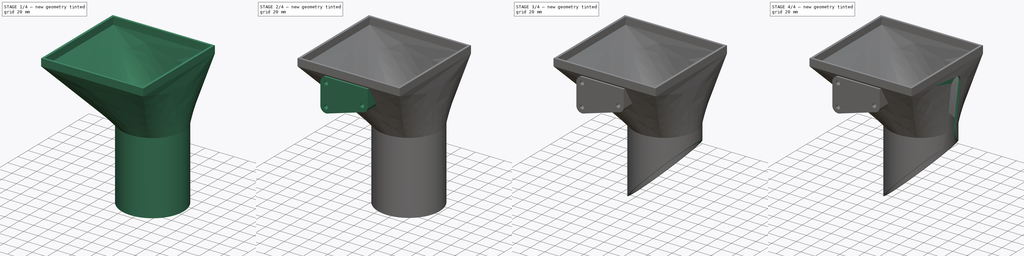
[diagram: build sequence overview — one tinted view per stage of 4, left to right]
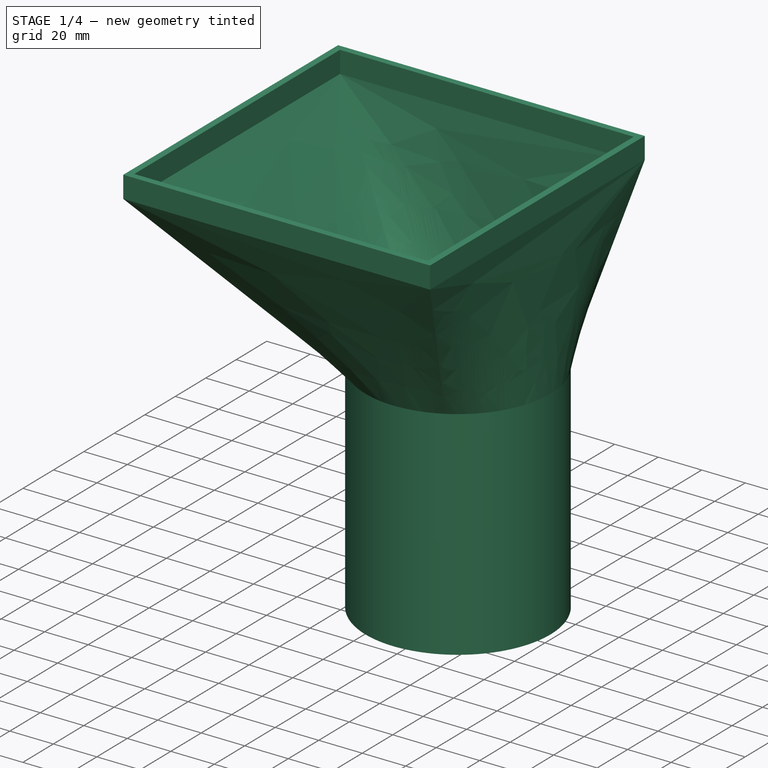
[diagram: stage 1 of 4 — iso view after this stage's code; geometry added in this stage tinted green]
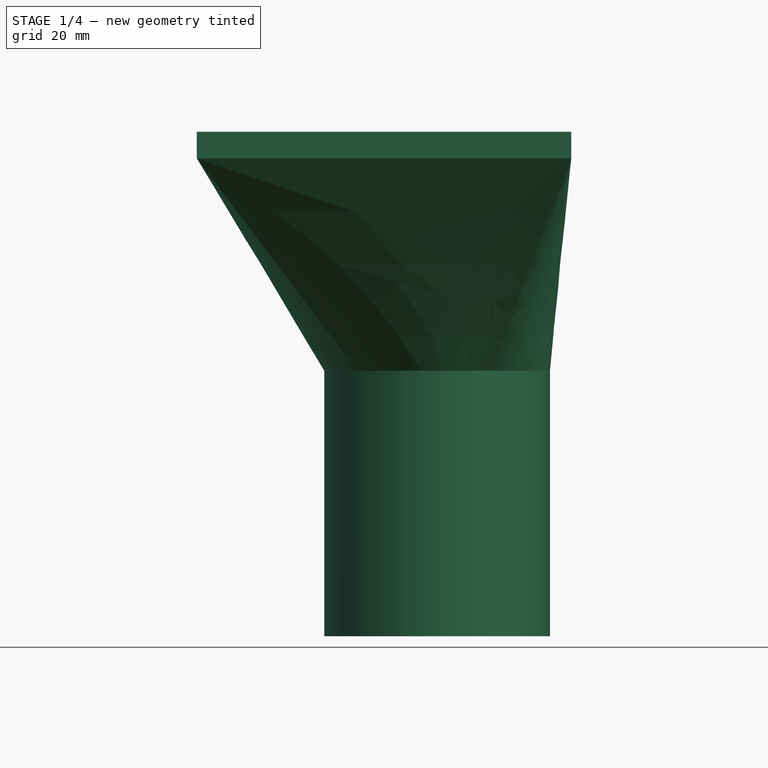
[diagram: stage 1 of 4 — front view after this stage's code; geometry added in this stage tinted green]
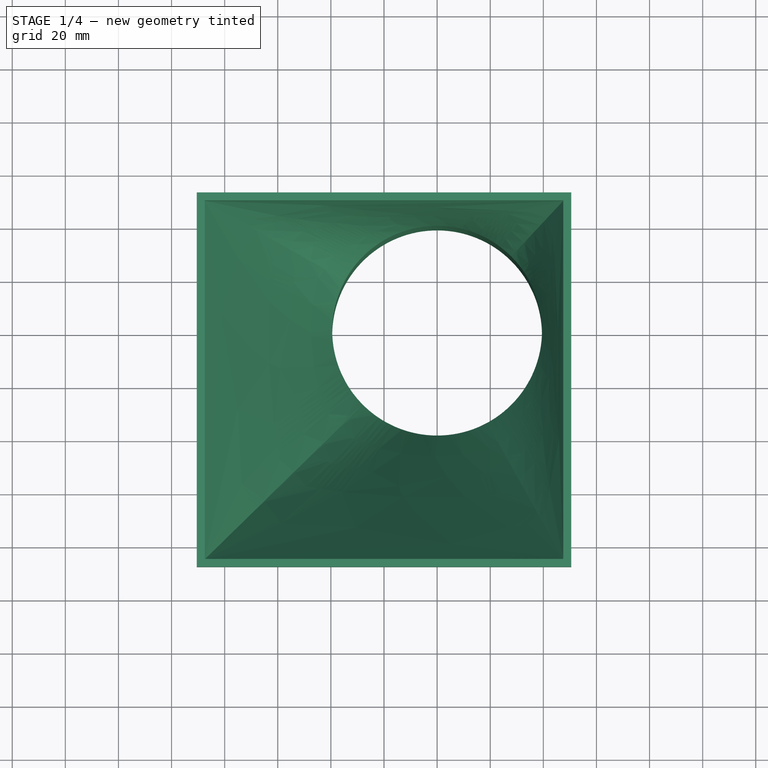
[diagram: stage 1 of 4 — top view after this stage's code; geometry added in this stage tinted green]
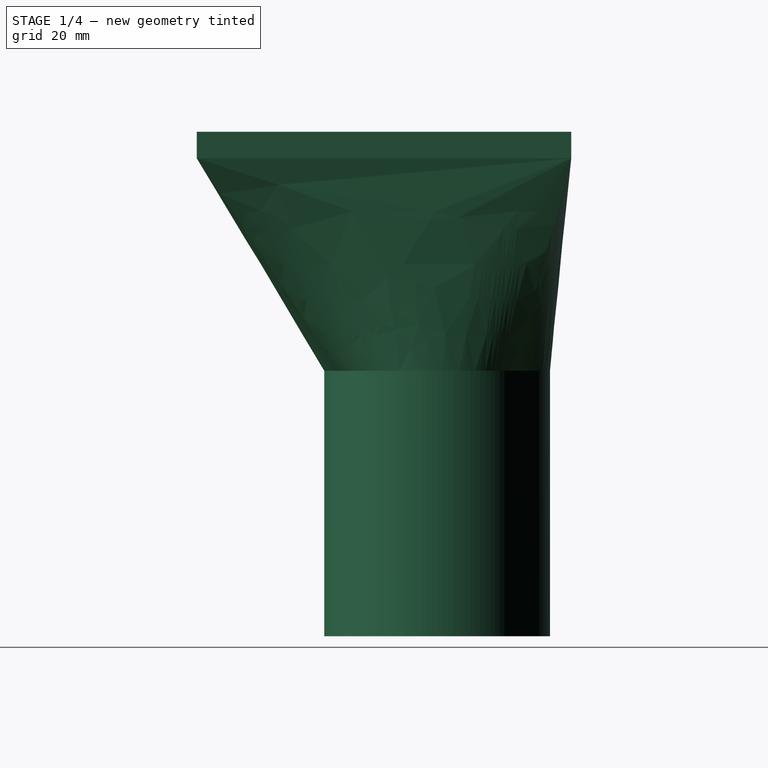
[diagram: stage 1 of 4 — right view after this stage's code; geometry added in this stage tinted green]
FCSTD DOCUMENT  (FreeCAD 0.19R24291 (Git))
Label: min_wool_funnel
License: All rights reserved
LicenseURL: http://en.wikipedia.org/wiki/All_rights_reserved
objects: Sketcher::SketchObject×12, PartDesign::Plane×7, PartDesign::Pocket×3, PartDesign::Line×3, PartDesign::Groove×3, PartDesign::Pad×2, Spreadsheet::Sheet×1, PartDesign::CoordinateSystem×1, PartDesign::AdditiveLoft×1, PartDesign::Mirrored×1, PartDesign::Body×1
note: 43 computed .brp shape members not serialized (recipe doc carries the construction recipe); baked Part::Feature solids carry a one-line shape summary decoded from their .brp

FEATURE [Spreadsheet::Sheet] Spreadsheet
  cells = B2(wall_thickness)=3; C2(tube_offset_x)=20; B3(funnel_x)=135; C3(tube_offset_y)==tube_offset_x; B4(funnel_y)==funnel_x; C4(tube_d)=85; B5(funnel_vert_length)=10; C5(tube_l)=100; B6(funnel_length)=90; C6(tube_cut_angle)==45°
FEATURE [Sketcher::SketchObject] Sketch
  FullyConstrained = true
  MapMode = 5
  Support = -> [XY_Plane]
  expr: Constraints[33] = Spreadsheet.funnel_y + Spreadsheet.wall_thickness * 2
  expr: Constraints[32] = Spreadsheet.funnel_x + Spreadsheet.wall_thickness * 2
  expr: Constraints[31] = Spreadsheet.funnel_y
  expr: Constraints[30] = Spreadsheet.funnel_x
  sketch-geometry (14):
    g0: LineSegment StartX=67.5 StartY=67.5 StartZ=0 EndX=-67.5 EndY=67.5 EndZ=0
    g1: LineSegment StartX=-67.5 StartY=67.5 StartZ=0 EndX=-67.5 EndY=-67.5 EndZ=0
    g2: LineSegment StartX=-67.5 StartY=-67.5 StartZ=0 EndX=67.5 EndY=-67.5 EndZ=0
    g3: LineSegment StartX=67.5 StartY=-67.5 StartZ=0 EndX=67.5 EndY=67.5 EndZ=0
    g4: LineSegment StartX=70.5 StartY=70.5 StartZ=0 EndX=-70.5 EndY=70.5 EndZ=0
    g5: LineSegment StartX=-70.5 StartY=70.5 StartZ=0 EndX=-70.5 EndY=-70.5 EndZ=0
    g6: LineSegment StartX=-70.5 StartY=-70.5 StartZ=0 EndX=70.5 EndY=-70.5 EndZ=0
    g7: LineSegment StartX=70.5 StartY=-70.5 StartZ=0 EndX=70.5 EndY=70.5 EndZ=0
    g8: LineSegment StartX=-67.5 StartY=67.5 StartZ=0 EndX=67.5 EndY=-67.5 EndZ=0
    g9: LineSegment StartX=67.5 StartY=67.5 StartZ=0 EndX=-67.5 EndY=-67.5 EndZ=0
    g10: LineSegment StartX=70.5 StartY=70.5 StartZ=0 EndX=-70.5 EndY=-70.5 EndZ=0
    g11: LineSegment StartX=-70.5 StartY=70.5 StartZ=0 EndX=70.5 EndY=-70.5 EndZ=0
    g12: GeomPoint X=0 Y=0 Z=0
    g13: GeomPoint X=0 Y=0 Z=0
  constraints (34):
    c: Coincident(g0,g1)
    c: Coincident(g1,g2)
    c: Coincident(g2,g3)
    c: Coincident(g3,g0)
    c: Horizontal(g0)
    c: Horizontal(g2)
    c: Vertical(g1)
    c: Vertical(g3)
    c: Coincident(g4,g5)
    c: Coincident(g5,g6)
    c: Coincident(g6,g7)
    c: Coincident(g7,g4)
    c: Horizontal(g4)
    c: Horizontal(g6)
    c: Vertical(g5)
    c: Vertical(g7)
    c: Coincident(g8,g0)
    c: Coincident(g8,g2)
    c: Coincident(g9,g0)
    c: Coincident(g9,g1)
    c: Coincident(g10,g4)
    c: Coincident(g10,g5)
    c: Coincident(g11,g4)
    c: Coincident(g11,g6)
    c: PointOnObject(g12,g8)
    c: PointOnObject(g12,g9)
    c: PointOnObject(g13,g10)
    c: PointOnObject(g13,g11)
    c: Coincident(g13,g-1)
    c: Coincident(g12,g-1)
    c: Distance(g0) = 135
    c: Distance(g3) = 135
    c: Distance(g4) = 141
    c: Distance(g7) = 141
FEATURE [Sketcher::SketchObject] Sketch001
  AttachmentOffset = pos=(0,0,-10) rot=(0,0,1;0rad)
  FullyConstrained = true
  MapMode = 5
  Placement = pos=(0,0,-10) rot=(0,0,1;0rad)
  Support = -> [XY_Plane]
  expr: Constraints[33] = Spreadsheet.funnel_y + Spreadsheet.wall_thickness * 2
  expr: Constraints[32] = Spreadsheet.funnel_x + Spreadsheet.wall_thickness * 2
  expr: Constraints[31] = Spreadsheet.funnel_y
  expr: Constraints[30] = Spreadsheet.funnel_x
  expr: .AttachmentOffset.Base.z = -Spreadsheet.funnel_vert_length
  sketch-geometry (14):
    g0: LineSegment StartX=67.5 StartY=67.5 StartZ=0 EndX=-67.5 EndY=67.5 EndZ=0
    g1: LineSegment StartX=-67.5 StartY=67.5 StartZ=0 EndX=-67.5 EndY=-67.5 EndZ=0
    g2: LineSegment StartX=-67.5 StartY=-67.5 StartZ=0 EndX=67.5 EndY=-67.5 EndZ=0
    g3: LineSegment StartX=67.5 StartY=-67.5 StartZ=0 EndX=67.5 EndY=67.5 EndZ=0
    g4: LineSegment StartX=70.5 StartY=70.5 StartZ=0 EndX=-70.5 EndY=70.5 EndZ=0
    g5: LineSegment StartX=-70.5 StartY=70.5 StartZ=0 EndX=-70.5 EndY=-70.5 EndZ=0
    g6: LineSegment StartX=-70.5 StartY=-70.5 StartZ=0 EndX=70.5 EndY=-70.5 EndZ=0
    g7: LineSegment StartX=70.5 StartY=-70.5 StartZ=0 EndX=70.5 EndY=70.5 EndZ=0
    g8: LineSegment StartX=-67.5 StartY=67.5 StartZ=0 EndX=67.5 EndY=-67.5 EndZ=0
    g9: LineSegment StartX=67.5 StartY=67.5 StartZ=0 EndX=-67.5 EndY=-67.5 EndZ=0
    g10: LineSegment StartX=70.5 StartY=70.5 StartZ=0 EndX=-70.5 EndY=-70.5 EndZ=0
    g11: LineSegment StartX=-70.5 StartY=70.5 StartZ=0 EndX=70.5 EndY=-70.5 EndZ=0
    g12: GeomPoint X=0 Y=0 Z=0
    g13: GeomPoint X=0 Y=0 Z=0
  constraints (34):
    c: Coincident(g0,g1)
    c: Coincident(g1,g2)
    c: Coincident(g2,g3)
    c: Coincident(g3,g0)
    c: Horizontal(g0)
    c: Horizontal(g2)
    c: Vertical(g1)
    c: Vertical(g3)
    c: Coincident(g4,g5)
    c: Coincident(g5,g6)
    c: Coincident(g6,g7)
    c: Coincident(g7,g4)
    c: Horizontal(g4)
    c: Horizontal(g6)
    c: Vertical(g5)
    c: Vertical(g7)
    c: Coincident(g8,g0)
    c: Coincident(g8,g2)
    c: Coincident(g9,g0)
    c: Coincident(g9,g1)
    c: Coincident(g10,g4)
    c: Coincident(g10,g5)
    c: Coincident(g11,g4)
    c: Coincident(g11,g6)
    c: PointOnObject(g12,g8)
    c: PointOnObject(g12,g9)
    c: PointOnObject(g13,g10)
    c: PointOnObject(g13,g11)
    c: Coincident(g13,g-1)
    c: Coincident(g12,g-1)
    c: Distance(g0) = 135
    c: Distance(g3) = 135
    c: Distance(g4) = 141
    c: Distance(g7) = 141
FEATURE [PartDesign::CoordinateSystem] Local_CS
  AttacherType = Attacher::AttachEngine3D
  AttachmentOffset = pos=(20,20,-90) rot=(0,0,1;0rad)
  MapMode = 2
  Placement = pos=(20,20,-90) rot=(0,0,1;0rad)
  Support = -> [X_Axis]
  expr: .AttachmentOffset.Base.x = Spreadsheet.tube_offset_x
  expr: .AttachmentOffset.Base.y = Spreadsheet.tube_offset_y
  expr: .AttachmentOffset.Base.z = -Spreadsheet.funnel_length
FEATURE [PartDesign::Plane] DatumPlane
  Length = 169.3
  MapMode = 5
  Placement = pos=(20,20,-90) rot=(0,0,1;0rad)
  ResizeMode = 0
  Support = -> [Local_CS]
  Width = 170.3
FEATURE [Sketcher::SketchObject] Sketch002
  FullyConstrained = true
  MapMode = 5
  Placement = pos=(20,20,-90) rot=(0,0,1;0rad)
  Support = -> [DatumPlane]
  expr: Constraints[26] = -(Spreadsheet.funnel_x / 2 + Spreadsheet.tube_offset_x)
  expr: Constraints[29] = Spreadsheet.funnel_y / 2 - Spreadsheet.tube_offset_y
  expr: Constraints[24] = Spreadsheet.funnel_x / 2 - Spreadsheet.tube_offset_x
  expr: Constraints[28] = -(Spreadsheet.funnel_x / 2 + Spreadsheet.tube_offset_x)
  expr: Constraints[25] = -(Spreadsheet.funnel_y / 2 + Spreadsheet.tube_offset_y)
  expr: Constraints[20] = Spreadsheet.funnel_y / 2 - Spreadsheet.tube_offset_y
  expr: Constraints[19] = Spreadsheet.funnel_x / 2 - Spreadsheet.tube_offset_x
  expr: Constraints[27] = -(Spreadsheet.funnel_y / 2 + Spreadsheet.tube_offset_y)
  expr: Constraints[17] = Spreadsheet.tube_d
  expr: Constraints[16] = Spreadsheet.tube_d - Spreadsheet.wall_thickness * 2
  sketch-geometry (12):
    g0: ArcOfCircle CenterX=0 CenterY=0 CenterZ=0 NormalX=0 NormalY=0 NormalZ=1 AngleXU=0 Radius=39.5 StartAngle=0.785398 EndAngle=2.64425
    g1: ArcOfCircle CenterX=0 CenterY=0 CenterZ=0 NormalX=0 NormalY=0 NormalZ=1 AngleXU=0 Radius=39.5 StartAngle=2.64425 EndAngle=3.92699
    g2: ArcOfCircle CenterX=0 CenterY=0 CenterZ=0 NormalX=0 NormalY=0 NormalZ=1 AngleXU=0 Radius=39.5 StartAngle=3.92699 EndAngle=5.20973
    g3: ArcOfCircle CenterX=0 CenterY=0 CenterZ=0 NormalX=0 NormalY=0 NormalZ=1 AngleXU=0 Radius=39.5 StartAngle=5.20973 EndAngle=7.06858
    g4: ArcOfCircle CenterX=0 CenterY=0 CenterZ=0 NormalX=0 NormalY=0 NormalZ=1 AngleXU=0 Radius=42.5 StartAngle=0.785398 EndAngle=2.64425
    g5: ArcOfCircle CenterX=0 CenterY=0 CenterZ=0 NormalX=0 NormalY=0 NormalZ=1 AngleXU=0 Radius=42.5 StartAngle=2.64425 EndAngle=3.92699
    g6: ArcOfCircle CenterX=0 CenterY=0 CenterZ=0 NormalX=0 NormalY=0 NormalZ=1 AngleXU=0 Radius=42.5 StartAngle=3.92699 EndAngle=5.20973
    g7: ArcOfCircle CenterX=0 CenterY=0 CenterZ=0 NormalX=0 NormalY=0 NormalZ=1 AngleXU=0 Radius=42.5 StartAngle=5.20973 EndAngle=7.06858
    g8: LineSegment StartX=0 StartY=0 StartZ=0 EndX=47.5 EndY=47.5 EndZ=0
    g9: LineSegment StartX=0 StartY=0 StartZ=0 EndX=47.5 EndY=-87.5 EndZ=0
    g10: LineSegment StartX=0 StartY=0 StartZ=0 EndX=-87.5 EndY=-87.5 EndZ=0
    g11: LineSegment StartX=0 StartY=0 StartZ=0 EndX=-87.5 EndY=47.5 EndZ=0
  constraints (38):
    c: Coincident(g0,g-1)
    c: Coincident(g1,g0)
    c: Coincident(g1,g0)
    c: Coincident(g2,g0)
    c: Coincident(g2,g1)
    c: Coincident(g3,g0)
    c: Coincident(g3,g2)
    c: Coincident(g3,g0)
    c: Coincident(g4,g0)
    c: Coincident(g5,g0)
    c: Coincident(g5,g4)
    c: Coincident(g6,g0)
    c: Coincident(g6,g5)
    c: Coincident(g7,g0)
    c: Coincident(g7,g6)
    c: Coincident(g7,g4)
    c: Diameter(g3) = 79
    c: Diameter(g7) = 85
    c: Coincident(g8,g0)
    c: DistanceX(g8) = 47.5
    c: DistanceY(g8) = 47.5
    c: Coincident(g9,g0)
    c: Coincident(g10,g0)
    c: Coincident(g11,g0)
    c: DistanceX(g9) = 47.5
    c: DistanceY(g9) = -87.5
    c: DistanceX(g10) = -87.5
    c: DistanceY(g10) = -87.5
    c: DistanceX(g11) = -87.5
    c: DistanceY(g11) = 47.5
    c: PointOnObject(g6,g9)
    c: PointOnObject(g2,g9)
    c: PointOnObject(g1,g10)
    c: PointOnObject(g5,g10)
    c: PointOnObject(g4,g11)
    c: PointOnObject(g0,g11)
    c: PointOnObject(g4,g8)
    c: PointOnObject(g0,g8)
FEATURE [PartDesign::AdditiveLoft] AdditiveLoft
  Closed = true
  Profile = -> Sketch
  Ruled = true
  Sections = -> [Sketch001,Sketch002]
FEATURE [PartDesign::Pad] Pad
  BaseFeature = -> AdditiveLoft
  Direction = (1,1,1)
  Length = 100
  Length2 = 100
  Profile = -> Sketch002
  Reversed = true
  Type = 0
  expr: Length = Spreadsheet.tube_l
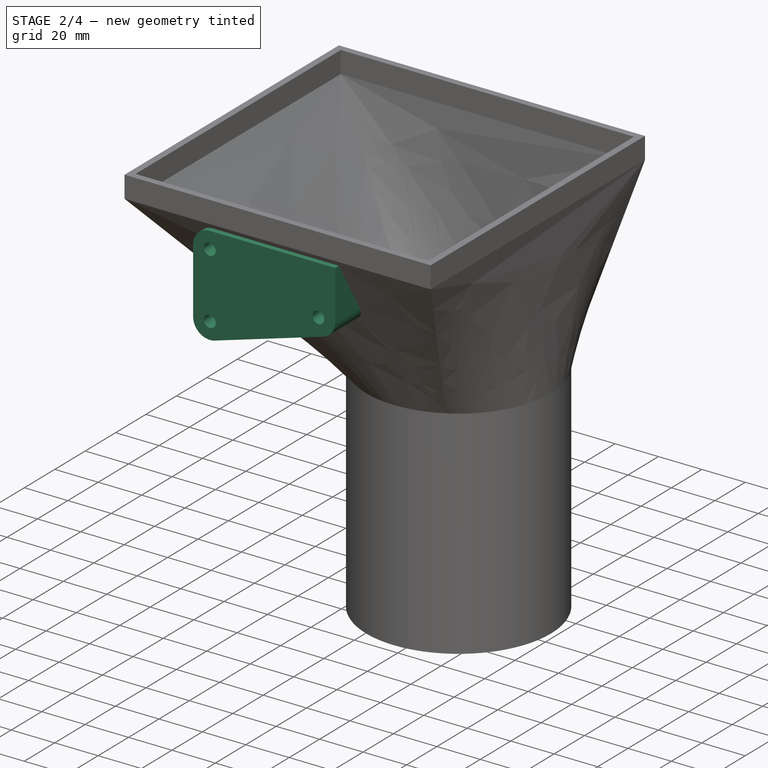
[diagram: stage 2 of 4 — iso view after this stage's code; geometry added in this stage tinted green]
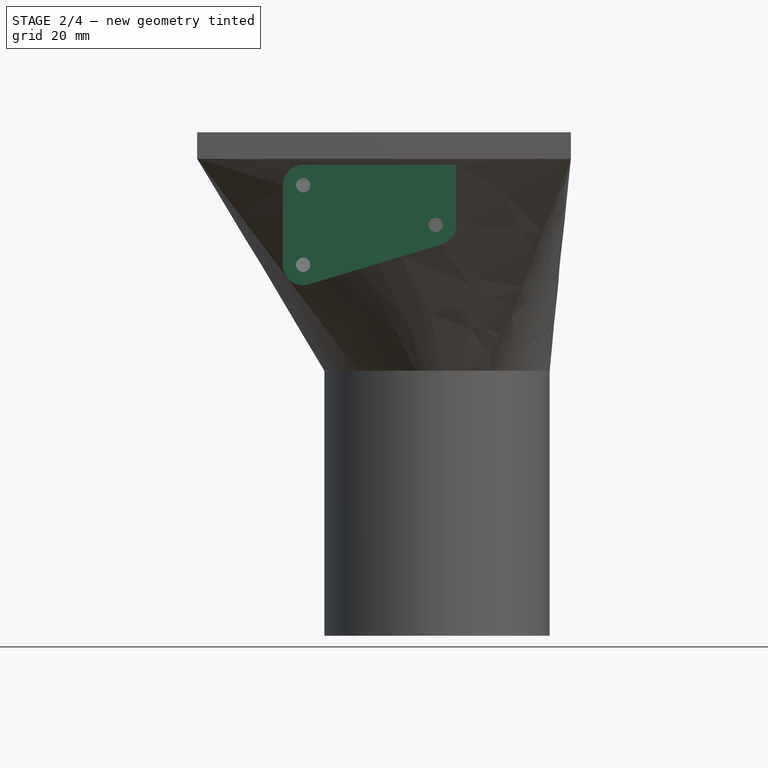
[diagram: stage 2 of 4 — front view after this stage's code; geometry added in this stage tinted green]
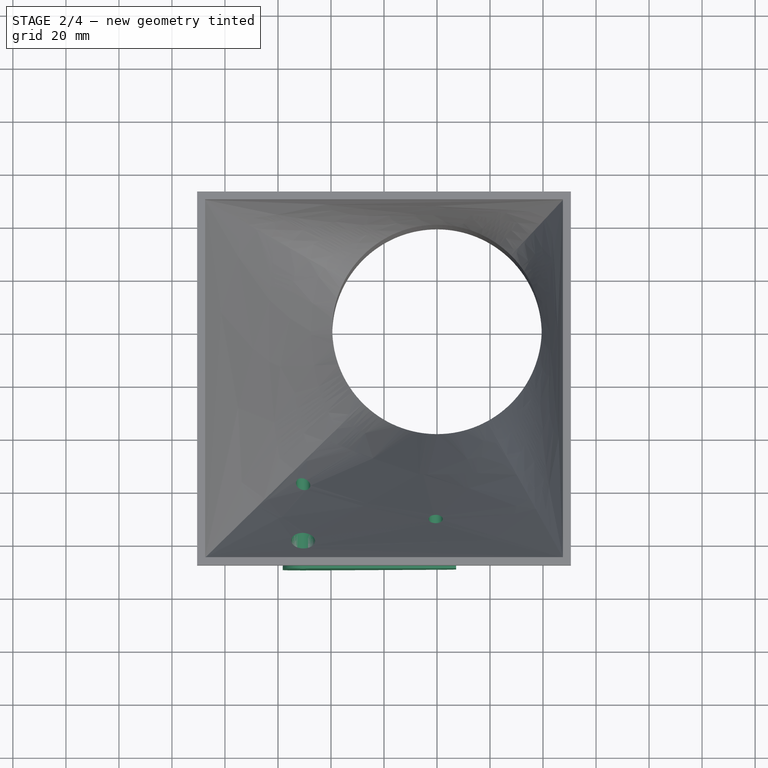
[diagram: stage 2 of 4 — top view after this stage's code; geometry added in this stage tinted green]
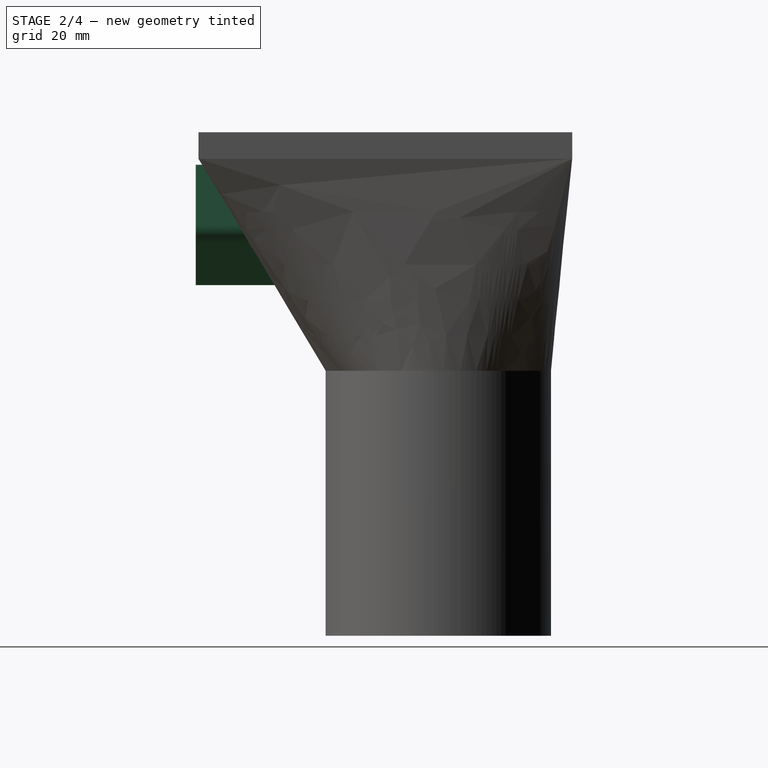
[diagram: stage 2 of 4 — right view after this stage's code; geometry added in this stage tinted green]
FEATURE [Sketcher::SketchObject] Sketch003
  FullyConstrained = true
  MapMode = 5
  Placement = pos=(0,0,0) rot=(1,0,0;1.5708rad)
  Support = -> [XZ_Plane]
  expr: Constraints[1] = Spreadsheet.funnel_x / 2
  sketch-geometry (6):
    g0: GeomPoint X=67.5 Y=0 Z=0
    g1: Circle CenterX=-30.5 CenterY=-20 CenterZ=0 NormalX=0 NormalY=0 NormalZ=1 AngleXU=0 Radius=2.7
    g2: Circle CenterX=-30.5 CenterY=-50 CenterZ=0 NormalX=0 NormalY=0 NormalZ=1 AngleXU=0 Radius=2.7
    g3: Circle CenterX=19.5 CenterY=-35 CenterZ=0 NormalX=0 NormalY=0 NormalZ=1 AngleXU=0 Radius=2.7
    g4: LineSegment StartX=-30.5 StartY=-50 StartZ=0 EndX=-30.5 EndY=-35 EndZ=0
    g5: LineSegment StartX=-30.5 StartY=-35 StartZ=0 EndX=-30.5 EndY=-20 EndZ=0
  constraints (16):
    c: PointOnObject(g0,g-1)
    c: Distance(g-1,g0) = 67.5
    c: Vertical(g1,g2)
    c: Equal(g3,g2)
    c: Equal(g2,g1)
    c: Coincident(g4,g2)
    c: Vertical(g4)
    c: Coincident(g5,g4)
    c: Coincident(g5,g1)
    c: Equal(g4,g5)
    c: Horizontal(g3,g4)
    c: DistanceX(g1,g0) = 98
    c: DistanceY(g2,g1) = 30
    c: DistanceX(g4,g3) = 50
    c: DistanceY(g1,g0) = 20
    c: Diameter(g3) = 5.4
FEATURE [Sketcher::SketchObject] Sketch004
  AttachmentOffset = pos=(0,0,71.5) rot=(0,0,1;0rad)
  FullyConstrained = true
  MapMode = 5
  Placement = pos=(0,-71.5,1.59e-14) rot=(1,0,0;1.5708rad)
  Support = -> [XZ_Plane]
  expr: Constraints[29] = 5.4 + 10
  expr: Constraints[15] = Sketch003.Constraints[15]
  expr: Constraints[14] = Sketch003.Constraints[14]
  expr: .AttachmentOffset.Base.z = Spreadsheet.funnel_y / 2 + Spreadsheet.wall_thickness + 1
  expr: Constraints[13] = Sketch003.Constraints[13]
  expr: Constraints[11] = Sketch003.Constraints[11]
  expr: Constraints[12] = Sketch003.Constraints[12]
  expr: Constraints[1] = Sketch003.Constraints[1]
  sketch-geometry (13):
    g0: GeomPoint X=67.5 Y=0 Z=0
    g1: Circle CenterX=-30.5 CenterY=-20 CenterZ=0 NormalX=0 NormalY=0 NormalZ=1 AngleXU=0 Radius=2.7
    g2: Circle CenterX=-30.5 CenterY=-50 CenterZ=0 NormalX=0 NormalY=0 NormalZ=1 AngleXU=0 Radius=2.7
    g3: Circle CenterX=19.5 CenterY=-35 CenterZ=0 NormalX=0 NormalY=0 NormalZ=1 AngleXU=0 Radius=2.7
    g4: LineSegment StartX=-30.5 StartY=-50 StartZ=0 EndX=-30.5 EndY=-35 EndZ=0
    g5: LineSegment StartX=-30.5 StartY=-35 StartZ=0 EndX=-30.5 EndY=-20 EndZ=0
    g6: ArcOfCircle CenterX=-30.5 CenterY=-50 CenterZ=0 NormalX=0 NormalY=0 NormalZ=1 AngleXU=0 Radius=7.7 StartAngle=3.1416 EndAngle=5.00384
    g7: ArcOfCircle CenterX=-30.5 CenterY=-20 CenterZ=0 NormalX=0 NormalY=0 NormalZ=1 AngleXU=0 Radius=7.7 StartAngle=1.5708 EndAngle=3.14159
    g8: ArcOfCircle CenterX=19.5 CenterY=-35 CenterZ=0 NormalX=0 NormalY=0 NormalZ=1 AngleXU=0 Radius=7.7 StartAngle=5.00385 EndAngle=6.28318
    g9: LineSegment StartX=-28.2875 StartY=-57.3753 StartZ=0 EndX=21.7126 EndY=-42.3753 EndZ=0
    g10: LineSegment StartX=-38.2 StartY=-20 StartZ=0 EndX=-38.2 EndY=-50 EndZ=0
    g11: LineSegment StartX=-30.5 StartY=-12.3 StartZ=0 EndX=27.2 EndY=-12.3 EndZ=0
    g12: LineSegment StartX=27.2 StartY=-35 StartZ=0 EndX=27.2 EndY=-12.3 EndZ=0
  constraints (37):
    c: PointOnObject(g0,g-1)
    c: Distance(g-1,g0) = 67.5
    c: Vertical(g1,g2)
    c: Equal(g3,g2)
    c: Equal(g2,g1)
    c: Coincident(g4,g2)
    c: Vertical(g4)
    c: Coincident(g5,g4)
    c: Coincident(g5,g1)
    c: Equal(g4,g5)
    c: Horizontal(g3,g4)
    c: DistanceX(g1,g0) = 98
    c: DistanceY(g2,g1) = 30
    c: DistanceX(g4,g3) = 50
    c: DistanceY(g1,g0) = 20
    c: Diameter(g3) = 5.4
    c: Coincident(g6,g2)
    c: Coincident(g7,g1)
    c: Coincident(g8,g3)
    c: Coincident(g9,g6)
    c: Coincident(g9,g8)
    c: Coincident(g10,g7)
    c: Coincident(g10,g6)
    c: Vertical(g10)
    c: Equal(g6,g7)
    c: Equal(g7,g8)
    c: Tangent(g7,g10)
    c: Tangent(g6,g9)
    c: Tangent(g9,g8)
    c: Diameter(g8) = 15.4
    c: Coincident(g11,g7)
    c: Horizontal(g11)
    c: Coincident(g12,g8)
    c: Coincident(g12,g11)
    c: Vertical(g12)
    c: Tangent(g8,g12)
    c: Tangent(g11,g7)
FEATURE [PartDesign::Pad] Pad001
  BaseFeature = -> Pad
  Direction = (1,1,1)
  Length = 10
  Length2 = 100
  Profile = -> Sketch004
  Reversed = true
  Type = 2
FEATURE [PartDesign::Pocket] Pocket
  BaseFeature = -> Pad001
  Length = 5
  Length2 = 100
  Profile = -> Sketch003
  Reversed = true
  Type = 1
FEATURE [PartDesign::Line] DatumLine
  AttacherType = Attacher::AttachEngineLine
  Length = 20
  MapMode = 19
  Placement = pos=(-30.5,-4.4e-15,-20) rot=(1,0,0;1.5708rad)
  ResizeMode = 0
  Support = -> [Sketch003]
FEATURE [PartDesign::Line] DatumLine001
  AttacherType = Attacher::AttachEngineLine
  Length = 20
  MapMode = 19
  Placement = pos=(19.5,-7.8e-15,-35) rot=(1,0,0;1.5708rad)
  ResizeMode = 0
  Support = -> [Sketch003]
FEATURE [PartDesign::Line] DatumLine002
  AttacherType = Attacher::AttachEngineLine
  Length = 20
  MapMode = 19
  Placement = pos=(-30.5,-1.11e-14,-50) rot=(1,0,0;1.5708rad)
  ResizeMode = 0
  Support = -> [Sketch003]
FEATURE [PartDesign::Plane] DatumPlane002
  Length = 169.3
  MapMode = 3
  Placement = pos=(-30.5,-4.4e-15,-20) rot=(1,0,0;3.14159rad)
  ResizeMode = 0
  Support = -> [DatumLine]
  Width = 170.3
FEATURE [PartDesign::Plane] DatumPlane003
  Length = 169.3
  MapMode = 3
  Placement = pos=(19.5,-7.8e-15,-35) rot=(1,0,0;3.14159rad)
  ResizeMode = 0
  Support = -> [DatumLine001]
  Width = 170.3
FEATURE [PartDesign::Plane] DatumPlane004
  Length = 169.3
  MapMode = 3
  Placement = pos=(-30.5,-1.11e-14,-50) rot=(1,0,0;3.14159rad)
  ResizeMode = 0
  Support = -> [DatumLine002]
  Width = 170.3
FEATURE [Sketcher::SketchObject] Sketch005
  AttachmentOffset = pos=(0,67,0) rot=(0,0,1;0rad)
  FullyConstrained = false
  MapMode = 5
  Placement = pos=(-30.5,-67,-20) rot=(1,0,0;3.14159rad)
  Support = -> [DatumPlane002]
  sketch-geometry (4):
    g0: LineSegment StartX=0 StartY=0 StartZ=0 EndX=0 EndY=-21.9807 EndZ=0
    g1: LineSegment StartX=0 StartY=-21.9807 StartZ=0 EndX=4.5 EndY=-21.9807 EndZ=0
    g2: LineSegment StartX=4.5 StartY=-21.9807 StartZ=0 EndX=4.5 EndY=-2.59808 EndZ=0
    g3: LineSegment StartX=4.5 StartY=-2.59808 StartZ=0 EndX=0 EndY=0 EndZ=0
  constraints (10):
    c: Coincident(g0,g-1)
    c: PointOnObject(g0,g-2)
    c: Coincident(g1,g0)
    c: Horizontal(g1)
    c: Coincident(g2,g1)
    c: Vertical(g2)
    c: Coincident(g3,g2)
    c: Coincident(g3,g0)
    c: Angle(g0,g3) = 1.0472
    c: DistanceX(g0,g2) = 4.5
FEATURE [PartDesign::Groove] Groove
  Angle = 360
  Axis = (0,-1,2e-16)
  Base = (-30.5,-67,-20)
  BaseFeature = -> Pocket
  Profile = -> Sketch005
  ReferenceAxis = -> Sketch005 [V_Axis]
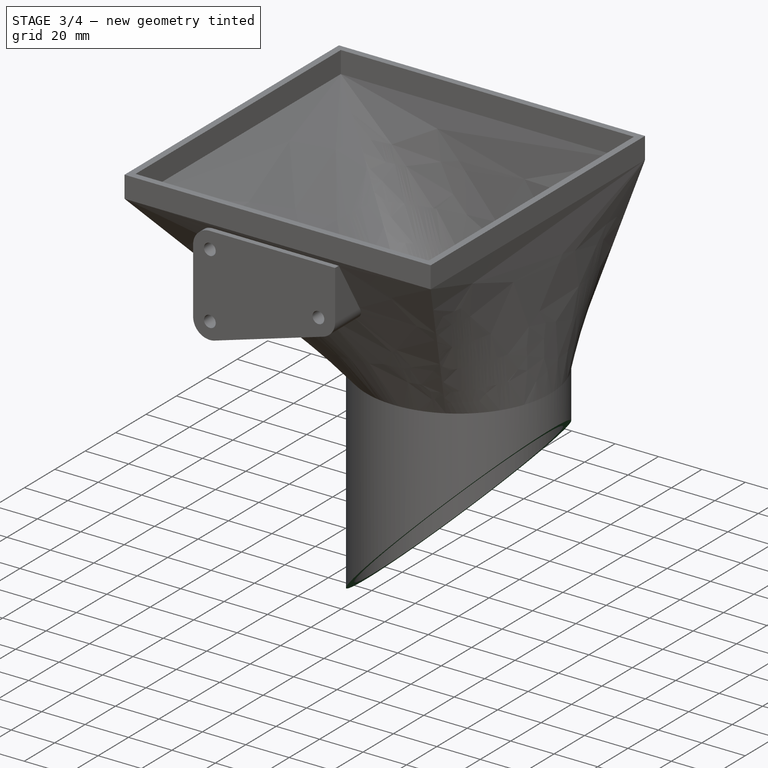
[diagram: stage 3 of 4 — iso view after this stage's code; geometry added in this stage tinted green]
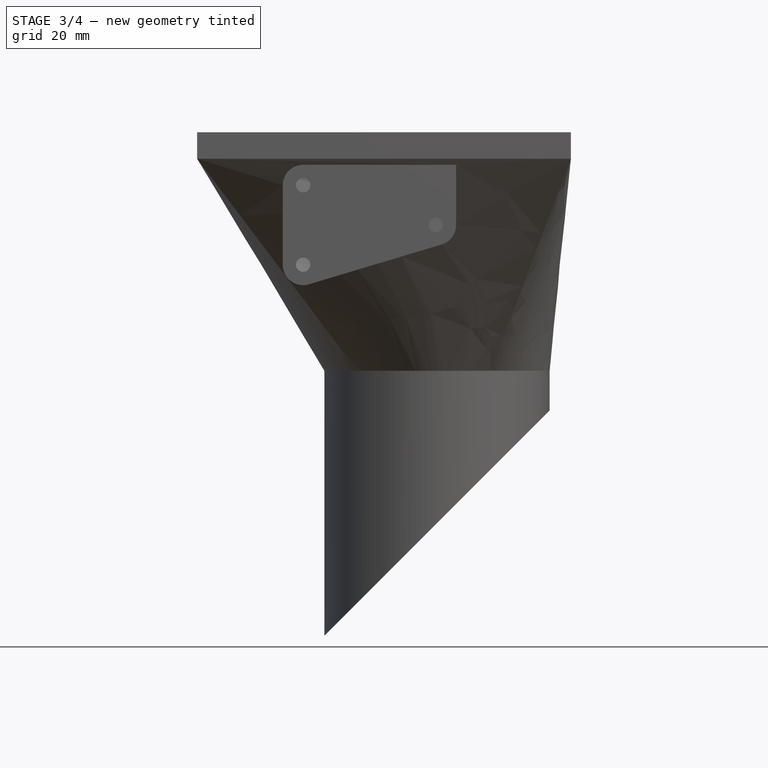
[diagram: stage 3 of 4 — front view after this stage's code; geometry added in this stage tinted green]
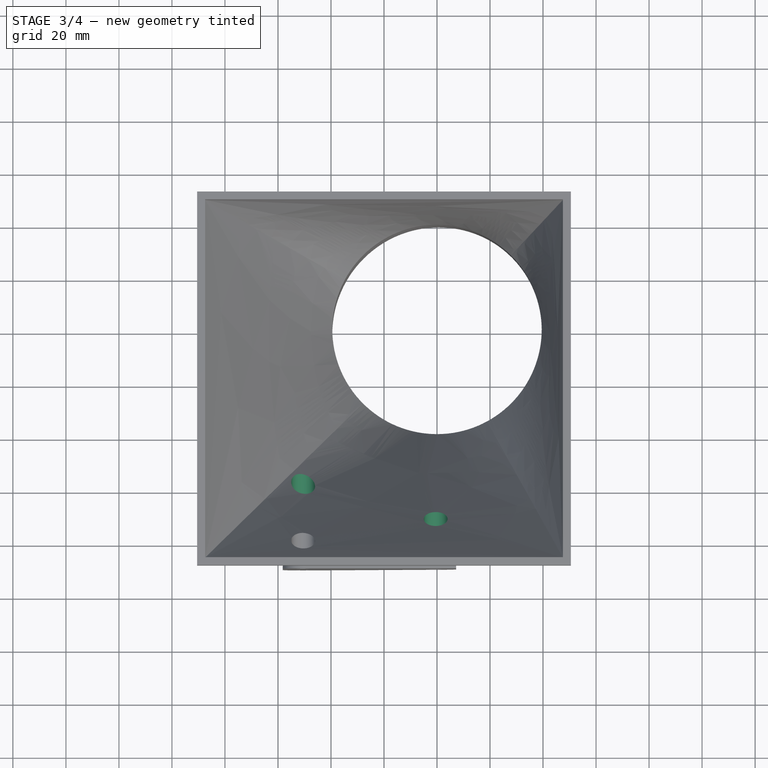
[diagram: stage 3 of 4 — top view after this stage's code; geometry added in this stage tinted green]
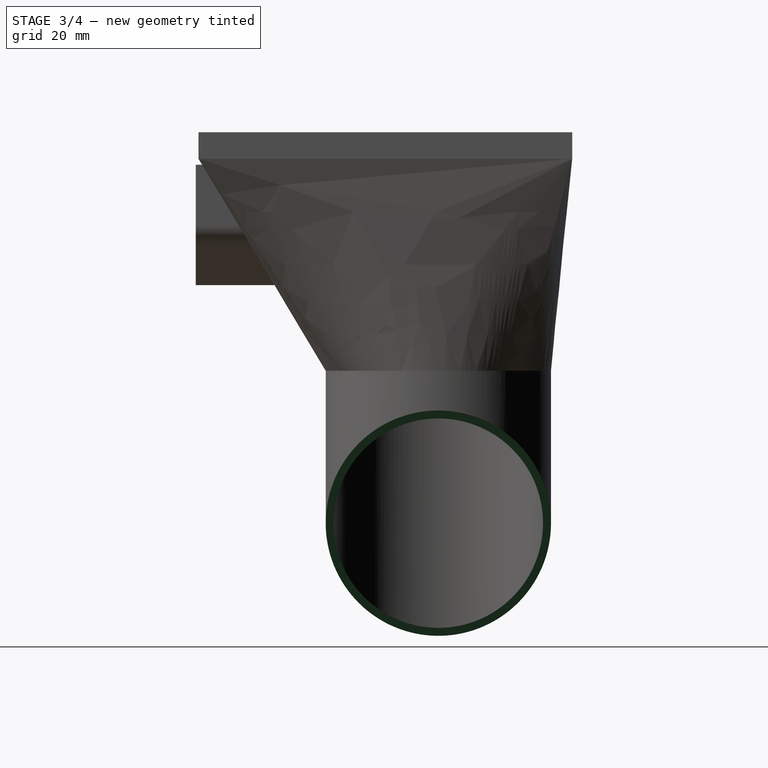
[diagram: stage 3 of 4 — right view after this stage's code; geometry added in this stage tinted green]
FEATURE [Sketcher::SketchObject] Sketch006
  AttachmentOffset = pos=(0,58,0) rot=(0,0,1;0rad)
  FullyConstrained = false
  MapMode = 5
  Placement = pos=(19.5,-58,-35) rot=(1,0,0;3.14159rad)
  Support = -> [DatumPlane003]
  sketch-geometry (4):
    g0: LineSegment StartX=0 StartY=0 StartZ=0 EndX=4.5 EndY=-2.59808 EndZ=0
    g1: LineSegment StartX=4.5 StartY=-2.59808 StartZ=0 EndX=4.5 EndY=-40.4105 EndZ=0
    g2: LineSegment StartX=4.5 StartY=-40.4105 StartZ=0 EndX=0 EndY=-40.4105 EndZ=0
    g3: LineSegment StartX=0 StartY=-40.4105 StartZ=0 EndX=0 EndY=0 EndZ=0
  constraints (10):
    c: Coincident(g0,g1)
    c: Coincident(g1,g2)
    c: Coincident(g2,g3)
    c: Coincident(g3,g0)
    c: Horizontal(g2)
    c: Vertical(g1)
    c: Vertical(g3)
    c: Coincident(g0,g-1)
    c: Angle(g3,g0) = 1.0472
    c: DistanceX(g0) = 4.5
FEATURE [PartDesign::Groove] Groove001
  Angle = 360
  Axis = (0,-1,2e-16)
  Base = (19.5,-58,-35)
  BaseFeature = -> Groove
  Profile = -> Sketch006
  ReferenceAxis = -> Sketch006 [V_Axis]
FEATURE [Sketcher::SketchObject] Sketch007
  AttachmentOffset = pos=(0,46,0) rot=(0,0,1;0rad)
  FullyConstrained = false
  MapMode = 5
  Placement = pos=(-30.5,-46,-50) rot=(1,0,0;3.14159rad)
  Support = -> [DatumPlane004]
  sketch-geometry (4):
    g0: LineSegment StartX=0 StartY=0 StartZ=0 EndX=4.5 EndY=-2.59808 EndZ=0
    g1: LineSegment StartX=4.5 StartY=-2.59808 StartZ=0 EndX=4.5 EndY=-13.0721 EndZ=0
    g2: LineSegment StartX=4.5 StartY=-13.0721 StartZ=0 EndX=0 EndY=-13.0721 EndZ=0
    g3: LineSegment StartX=0 StartY=-13.0721 StartZ=0 EndX=0 EndY=0 EndZ=0
  constraints (10):
    c: Coincident(g0,g1)
    c: Coincident(g1,g2)
    c: Coincident(g2,g3)
    c: Coincident(g3,g0)
    c: Horizontal(g2)
    c: Vertical(g1)
    c: Vertical(g3)
    c: Coincident(g0,g-1)
    c: Angle(g3,g0) = 1.0472
    c: DistanceX(g0,g0) = 4.5
FEATURE [PartDesign::Groove] Groove002
  Angle = 360
  Axis = (0,-1,2e-16)
  Base = (-30.5,-46,-50)
  BaseFeature = -> Groove001
  Profile = -> Sketch007
  ReferenceAxis = -> Sketch007 [V_Axis]
FEATURE [PartDesign::Plane] DatumPlane005
  Length = 175.822
  MapMode = 3
  Placement = pos=(20,20,-90) rot=(1,0,0;1.5708rad)
  ResizeMode = 0
  Support = -> [Local_CS]
  Width = 249.822
FEATURE [Sketcher::SketchObject] Sketch008
  FullyConstrained = true
  MapMode = 5
  Placement = pos=(20,20,-90) rot=(1,0,0;1.5708rad)
  Support = -> [DatumPlane005]
  expr: Constraints[7] = Spreadsheet.tube_l
  expr: Constraints[6] = Spreadsheet.tube_d / 2
  expr: Constraints[5] = Spreadsheet.tube_d / 2
  sketch-geometry (3):
    g0: LineSegment StartX=-42.5 StartY=-100 StartZ=0 EndX=42.5 EndY=-100 EndZ=0
    g1: LineSegment StartX=42.5 StartY=-100 StartZ=0 EndX=42.5 EndY=-15 EndZ=0
    g2: LineSegment StartX=42.5 StartY=-15 StartZ=0 EndX=-42.5 EndY=-100 EndZ=0
  constraints (9):
    c: Horizontal(g0)
    c: Coincident(g0,g1)
    c: Vertical(g1)
    c: Coincident(g1,g2)
    c: Coincident(g2,g0)
    c: DistanceX(g-1,g0) = 42.5
    c: DistanceX(g0,g-1) = 42.5
    c: Distance(g-1,g0) = 100
    c: Angle(g0,g2) = 0.785398
FEATURE [PartDesign::Pocket] Pocket001
  BaseFeature = -> Groove002
  Length = 5
  Length2 = 100
  Midplane = true
  Profile = -> Sketch008
  Type = 1
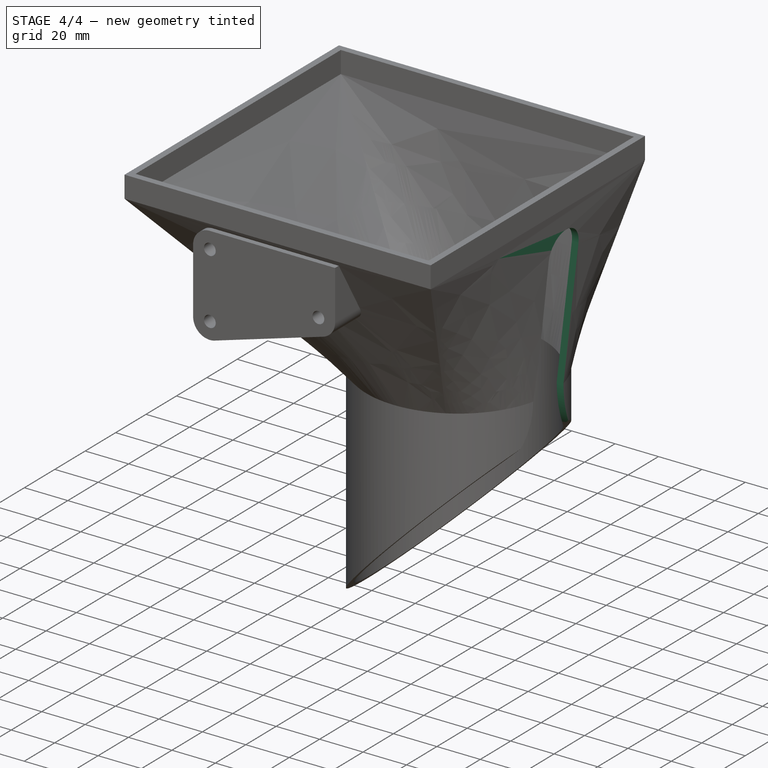
[diagram: stage 4 of 4 — iso view after this stage's code; geometry added in this stage tinted green]
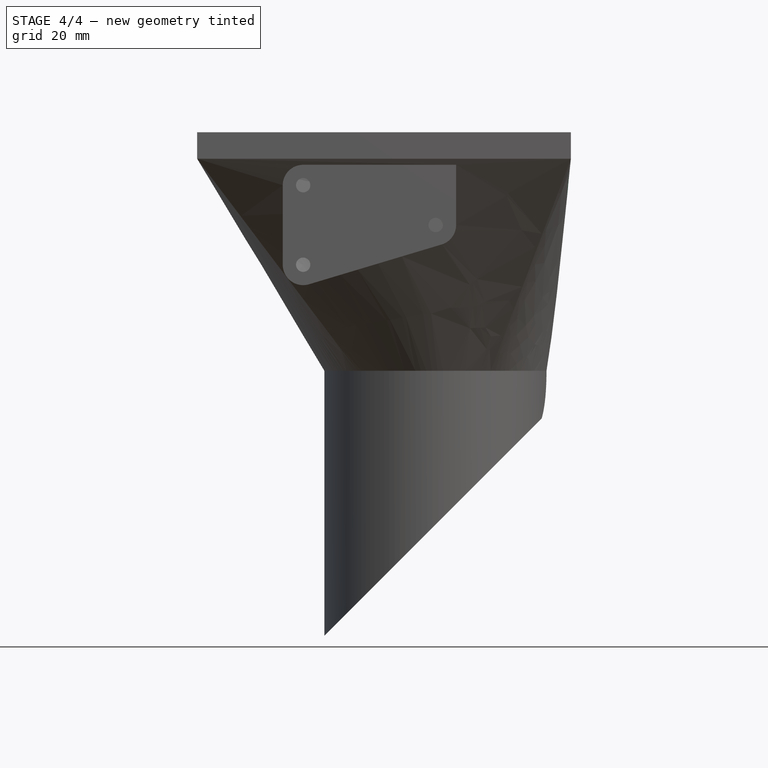
[diagram: stage 4 of 4 — front view after this stage's code; geometry added in this stage tinted green]
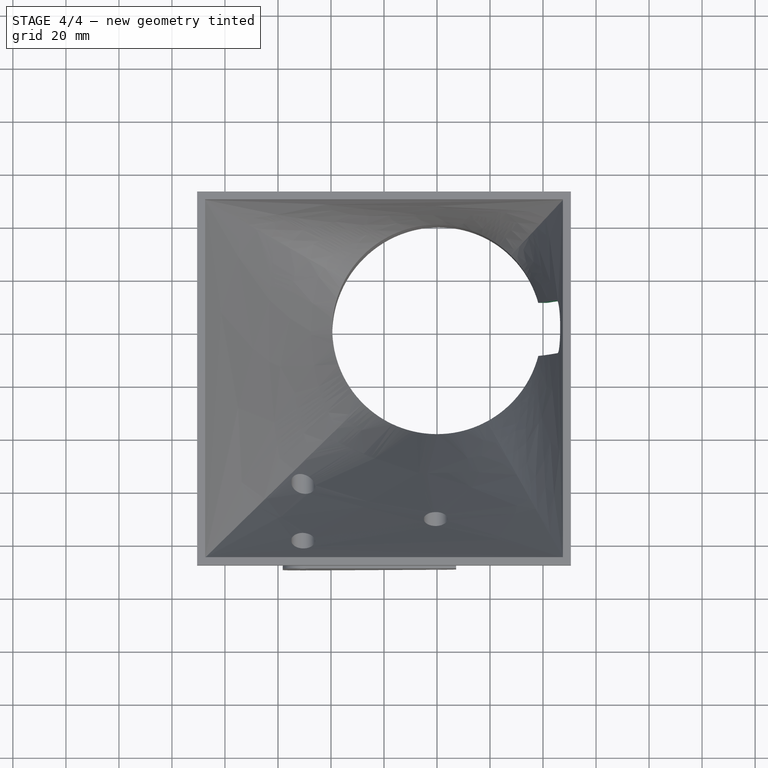
[diagram: stage 4 of 4 — top view after this stage's code; geometry added in this stage tinted green]
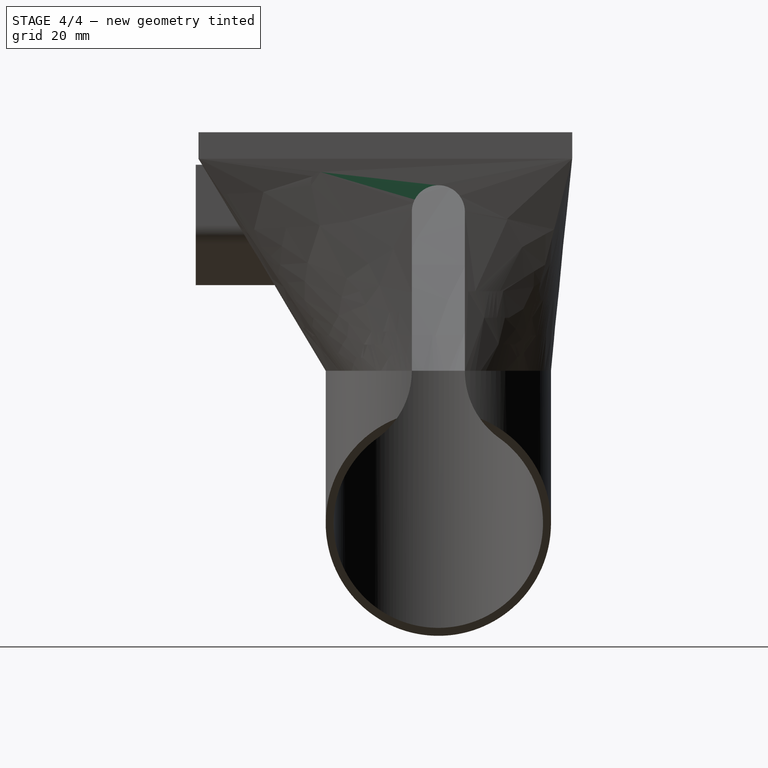
[diagram: stage 4 of 4 — right view after this stage's code; geometry added in this stage tinted green]
FEATURE [PartDesign::Plane] DatumPlane006
  Length = 176.946
  MapMode = 4
  Placement = pos=(20,20,-90) rot=(0.57735,0.57735,0.57735;2.0944rad)
  ResizeMode = 0
  Support = -> [Local_CS]
  Width = 249.946
FEATURE [Sketcher::SketchObject] Sketch009
  FullyConstrained = true
  MapMode = 5
  Placement = pos=(20,20,-90) rot=(0.57735,0.57735,0.57735;2.0944rad)
  Support = -> [DatumPlane006]
  expr: Constraints[10] = Spreadsheet.tube_d - Spreadsheet.wall_thickness * 2
  expr: Constraints[11] = Spreadsheet.tube_l - Spreadsheet.tube_d * tan(Spreadsheet.tube_cut_angle) / 2
  sketch-geometry (5):
    g0: ArcOfCircle CenterX=0 CenterY=60 CenterZ=0 NormalX=0 NormalY=0 NormalZ=1 AngleXU=0 Radius=10 StartAngle=2e-16 EndAngle=1.5708
    g1: LineSegment StartX=10 StartY=60 StartZ=0 EndX=10 EndY=7.1e-15 EndZ=0
    g2: ArcOfCircle CenterX=41.2881 CenterY=0 CenterZ=0 NormalX=0 NormalY=0 NormalZ=1 AngleXU=0 Radius=31.2881 StartAngle=3.14159 EndAngle=4.08965
    g3: ArcOfCircle CenterX=0 CenterY=-57.5 CenterZ=0 NormalX=0 NormalY=0 NormalZ=1 AngleXU=0 Radius=39.5 StartAngle=0.948056 EndAngle=1.5708
    g4: LineSegment StartX=2.4e-15 StartY=70 StartZ=0 EndX=2.4e-15 EndY=-18 EndZ=0
  constraints (16):
    c: Tangent(g0,g1) = 1.5708
    c: PointOnObject(g0,g-2)
    c: Diameter(g0) = 20
    c: PointOnObject(g0,g-2)
    c: Vertical(g1)
    c: PointOnObject(g1,g-1)
    c: DistanceY(g-1,g0) = 60
    c: PointOnObject(g2,g-1)
    c: Coincident(g2,g1)
    c: PointOnObject(g3,g-2)
    c: Diameter(g3) = 79
    c: DistanceY(g3,g-1) = 57.5
    c: Coincident(g4,g0)
    c: Vertical(g4)
    c: Tangent(g3,g2) = 1.5708
    c: Coincident(g3,g4)
FEATURE [PartDesign::Pocket] Pocket002
  BaseFeature = -> Pocket001
  Length = 5
  Length2 = 100
  Profile = -> Sketch009
  Reversed = true
  Type = 1
FEATURE [PartDesign::Mirrored] Mirrored
  BaseFeature = -> Pocket002
  MirrorPlane = -> Sketch009 [V_Axis]
  Originals = -> [Pocket002]
FEATURE [Sketcher::SketchObject] Sketch010
  AttachmentOffset = pos=(0,0,-1) rot=(0,0,1;0rad)
  FullyConstrained = true
  MapMode = 5
  Placement = pos=(20,20,-91) rot=(0,0,1;0rad)
  Support = -> [DatumPlane]
  expr: Constraints[11] = Spreadsheet.tube_d + 10
  expr: Constraints[2] = Spreadsheet.tube_d
  sketch-geometry (4):
    g0: ArcOfCircle CenterX=0 CenterY=0 CenterZ=0 NormalX=0 NormalY=0 NormalZ=1 AngleXU=0 Radius=42.5 StartAngle=0.237521 EndAngle=6.04566
    g1: ArcOfCircle CenterX=0 CenterY=0 CenterZ=0 NormalX=0 NormalY=0 NormalZ=1 AngleXU=0 Radius=47.5 StartAngle=0.237521 EndAngle=6.04566
    g2: LineSegment StartX=41.3068 StartY=10 StartZ=0 EndX=46.1664 EndY=11.1765 EndZ=0
    g3: LineSegment StartX=41.3068 StartY=-10 StartZ=0 EndX=46.1664 EndY=-11.1765 EndZ=0
  constraints (12):
    c: Coincident(g0,g-1)
    c: Coincident(g1,g0)
    c: Diameter(g0) = 85
    c: Vertical(g0,g0)
    c: DistanceY(g0,g0) = 20
    c: Coincident(g2,g0)
    c: Coincident(g2,g1)
    c: Coincident(g3,g0)
    c: Coincident(g3,g1)
    c: Perpendicular(g1,g3)
    c: Perpendicular(g1,g2)
    c: Diameter(g1) = 95
FEATURE [PartDesign::Plane] DatumPlane007
  Length = 175.822
  MapMode = 3
  Placement = pos=(20,20,-90) rot=(1,0,0;1.5708rad)
  ResizeMode = 0
  Support = -> [Local_CS]
  Width = 249.822
FEATURE [Sketcher::SketchObject] Sketch011
  AttachmentOffset = pos=(0,5,0) rot=(0,0,1;0rad)
  FullyConstrained = false
  MapMode = 5
  Placement = pos=(20,20,-85) rot=(1,0,0;1.5708rad)
  Support = -> [DatumPlane007]
  expr: Constraints[10] = Spreadsheet.tube_d / 2 + 1
  sketch-geometry (4):
    g0: LineSegment StartX=-43.5 StartY=0 StartZ=0 EndX=-49.1193 EndY=-4.17416 EndZ=0
    g1: LineSegment StartX=-49.1193 StartY=-4.17416 StartZ=0 EndX=-49.1193 EndY=-7.91129 EndZ=0
    g2: LineSegment StartX=-49.1193 StartY=-7.91129 StartZ=0 EndX=-43.5 EndY=-3.73713 EndZ=0
    g3: LineSegment StartX=-43.5 StartY=-3.73713 StartZ=0 EndX=-43.5 EndY=0 EndZ=0
  constraints (11):
    c: Coincident(g0,g1)
    c: Coincident(g1,g2)
    c: Coincident(g2,g3)
    c: Coincident(g3,g0)
    c: Vertical(g1)
    c: Vertical(g3)
    c: PointOnObject(g0,g-1)
    c: Distance(g2,g0) = 3
    c: Parallel(g2,g0)
    c: Distance(g0) = 7
    c: DistanceX(g0,g-1) = 43.5
FEATURE [PartDesign::Body] Body
  Group = -> [Sketch,Sketch001,Local_CS,DatumPlane,Sketch002,AdditiveLoft,Pad,Sketch003,Sketch004,Pad001,Pocket,DatumLine,DatumLine001,DatumLine002,DatumPlane002,DatumPlane003,DatumPlane004,Sketch005,Groove,Sketch006,Groove001,Sketch007,Groove002,DatumPlane005,Sketch008,Pocket001,DatumPlane006,Sketch009,Pocket002,Mirrored,Sketch010,DatumPlane007,Sketch011]
  Origin = -> Origin
  Tip = -> Mirrored
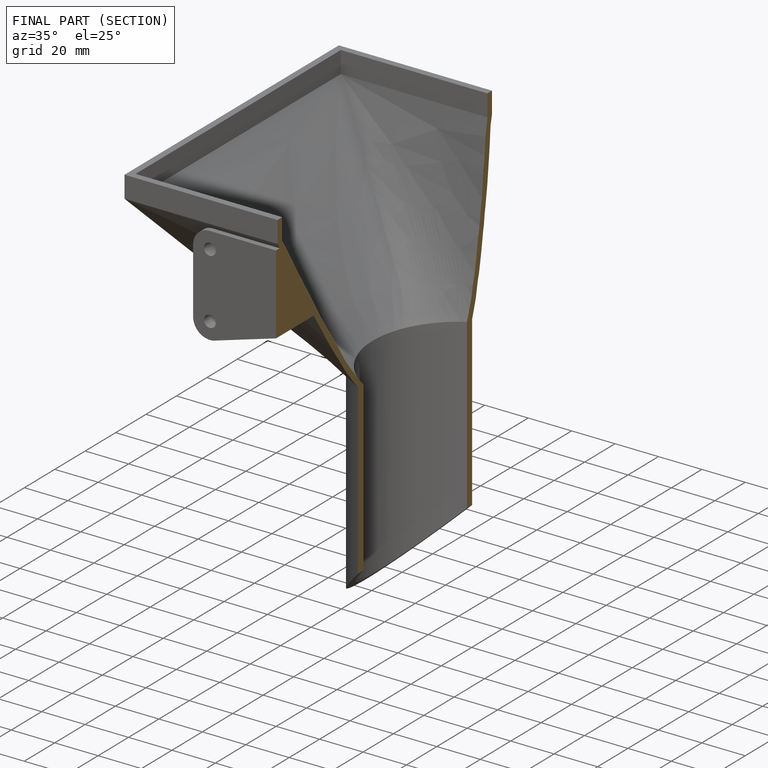
[diagram: finished part — half-section view (interior)]
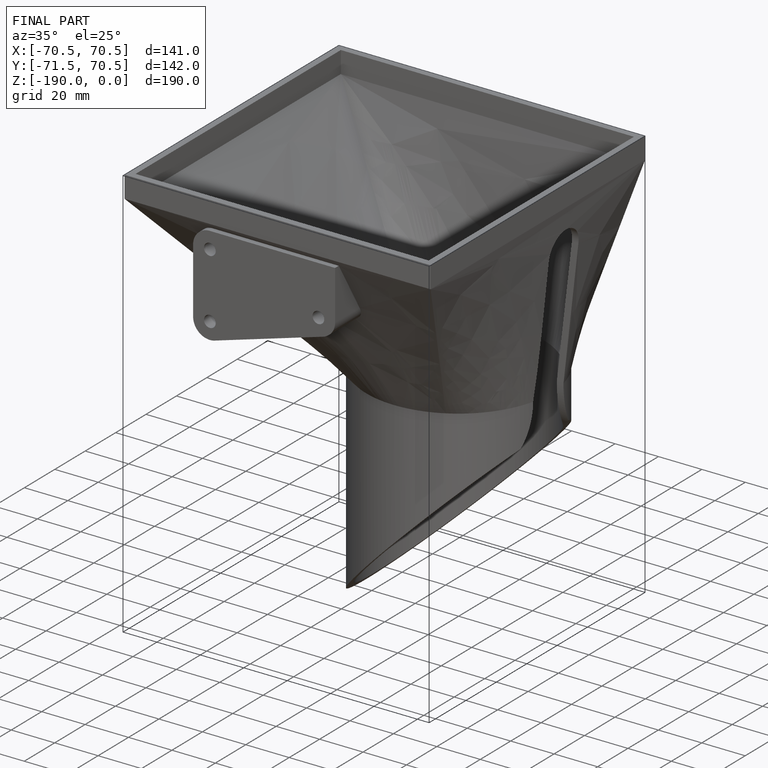
[diagram: finished part — iso view with bounding-box wireframe]
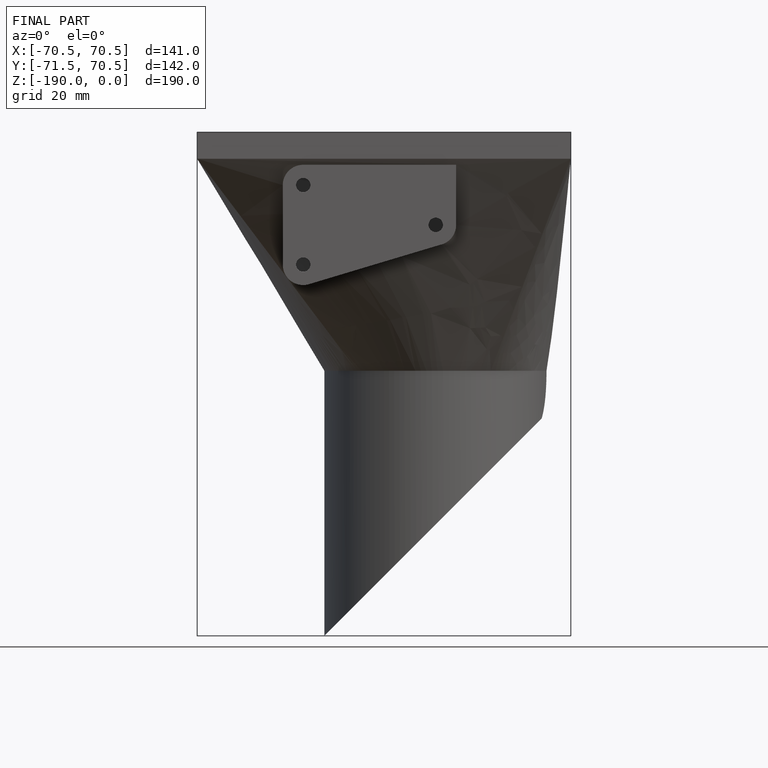
[diagram: finished part — front view with bounding-box wireframe]
